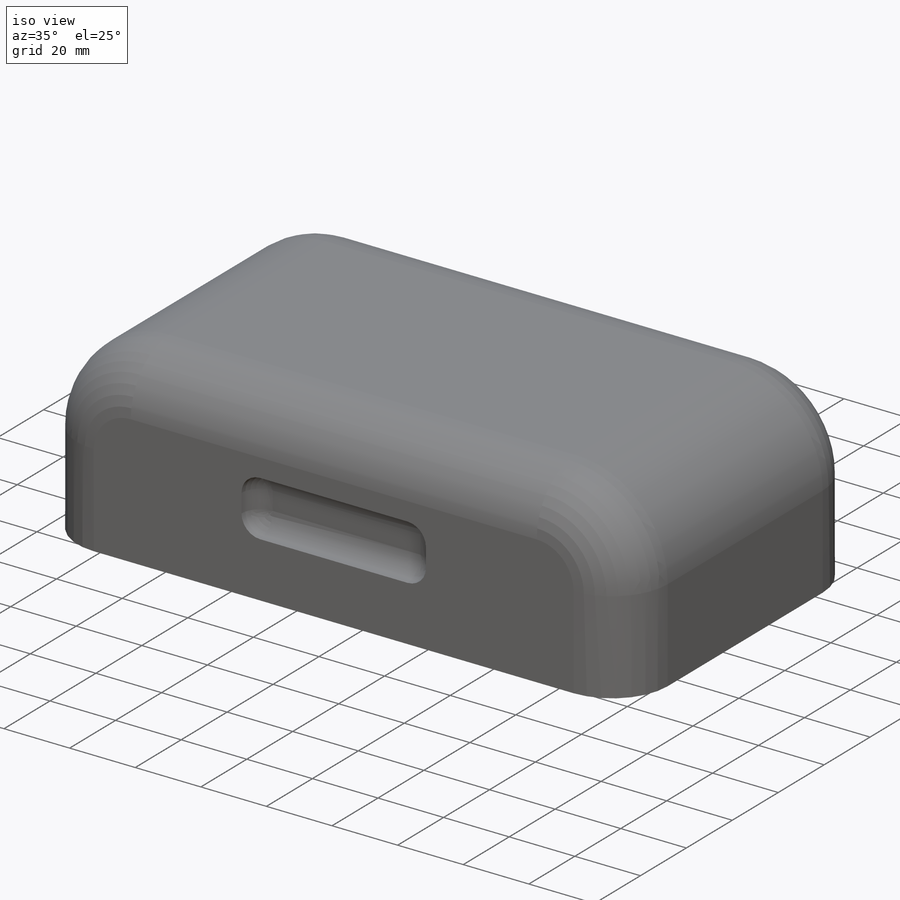
[diagram: iso view]
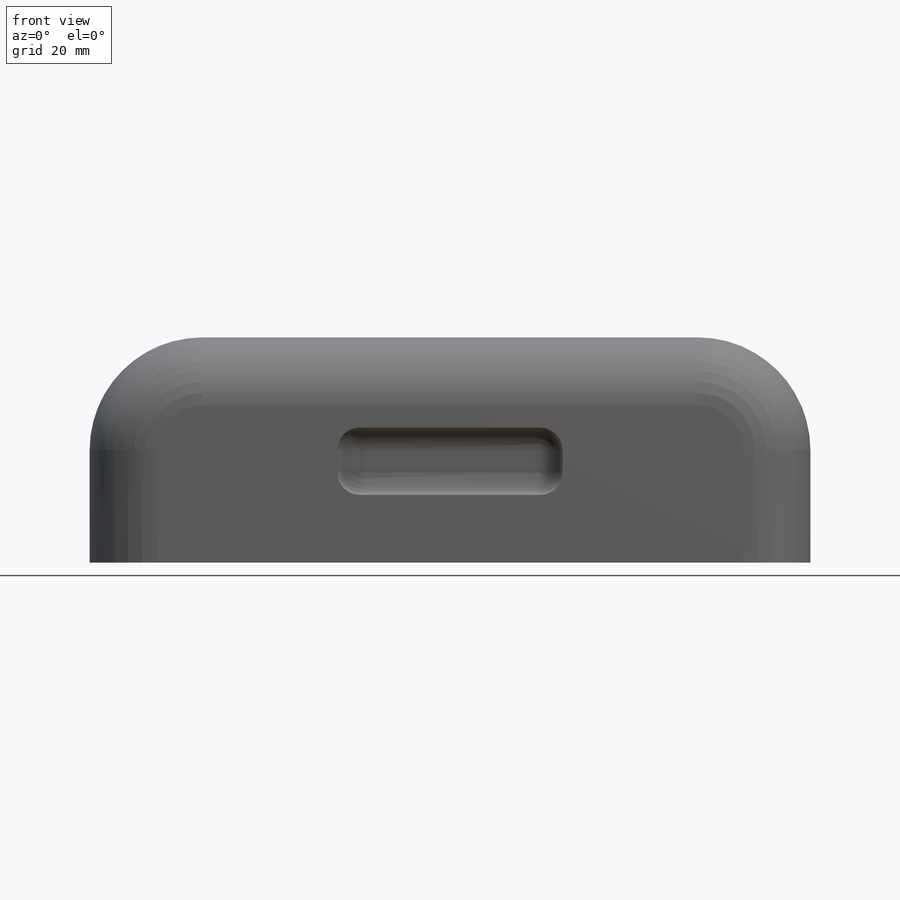
[diagram: front view]
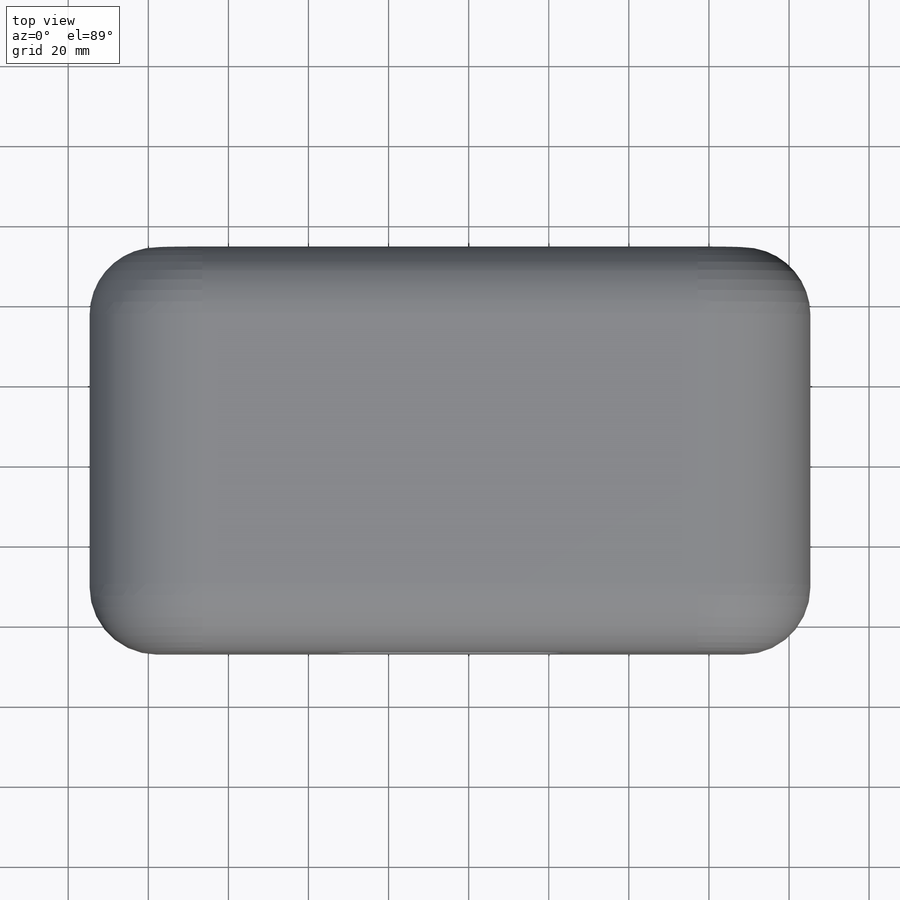
[diagram: top view]
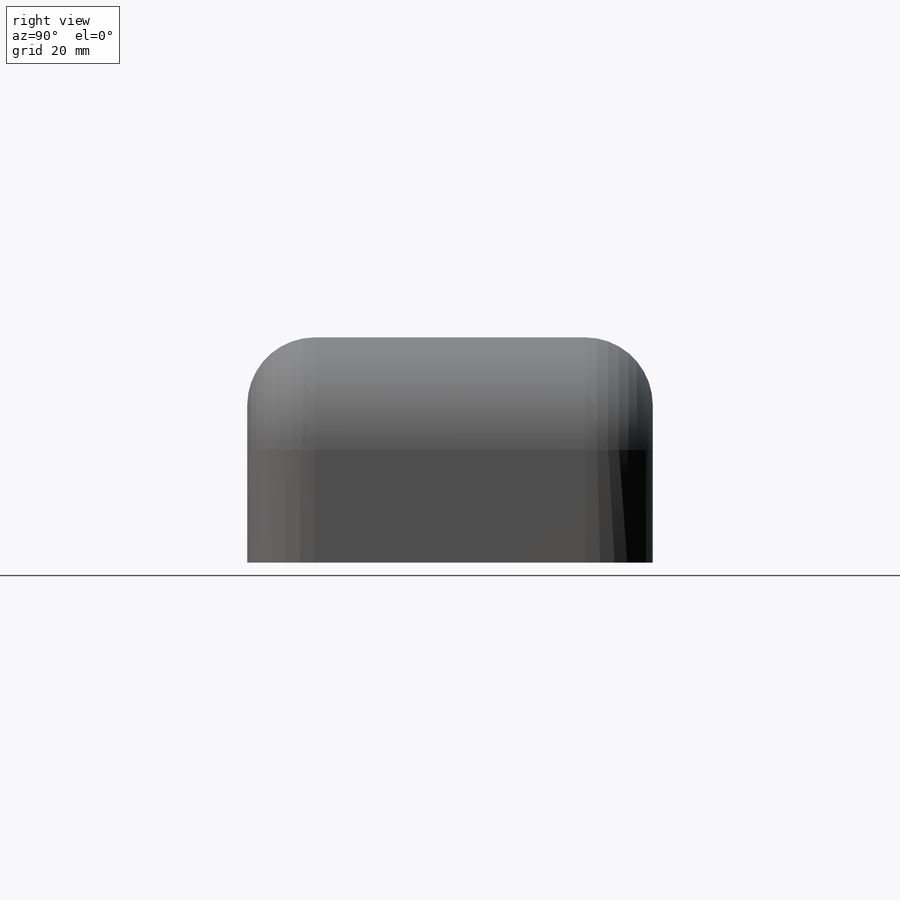
[diagram: right view]
SOLIDWORKS PART (.sldprt)
format: sldprt  version: not decoded by parser v0  size: 426,496 bytes
history: native  units: mm
features: fillet x6, plane x4, sketch x2, material x1, extrude x1, shell x1, cut_extrude x1, mirror x1 (+12 scaffold rows collapsed)
feature tree (29):
  scaffold x12  (default folders/planes/origin — collapsed)
  material  "Matériau <non spécifié>"
  plane  "Plan de face"
  plane  "Plan de dessus"
  plane  "Plan de droite"
  sketch  "Esquisse1"  dims[D1=90.0mm D2=160.0mm]
  extrude  "Extrusion1"  Depth=50mm
  fillet  "Congé1"  Radius=25mm
  fillet  "Congé2"  Radius=15mm
  shell  "Coque1"  Thickness=7mm
  sketch  "Esquisse2"  dims[D1=50.0mm D2=15.0mm D3=15.0mm D4=25.0mm]
  cut_extrude  "Enlèv. mat.-Extru.1"  Depth=5mm
  fillet  "Congé4"  Radius=5mm
  fillet  "Congé5"  Radius=5mm
  fillet  "Congé6"  Radius=5mm
  fillet  "Congé7"  Radius=5mm
  plane  "Plan1"  Offset=45mm
  mirror  "Symétrie1"
decode coverage: 11 of 12 modeling features carry decoded parameters
note: suppression state not decoded; provenance and decode notes live in map.json
